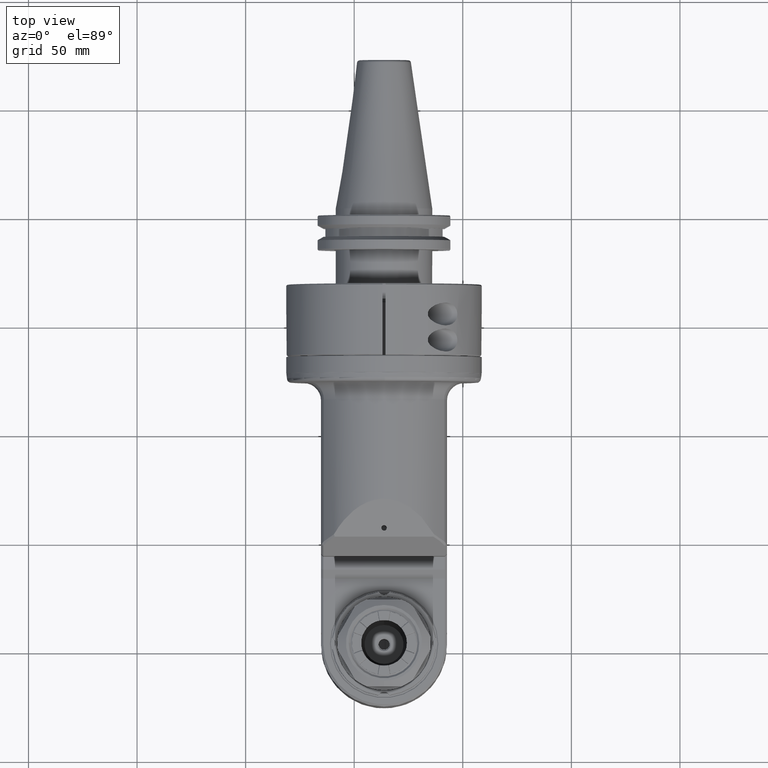
[diagram: clean part render]
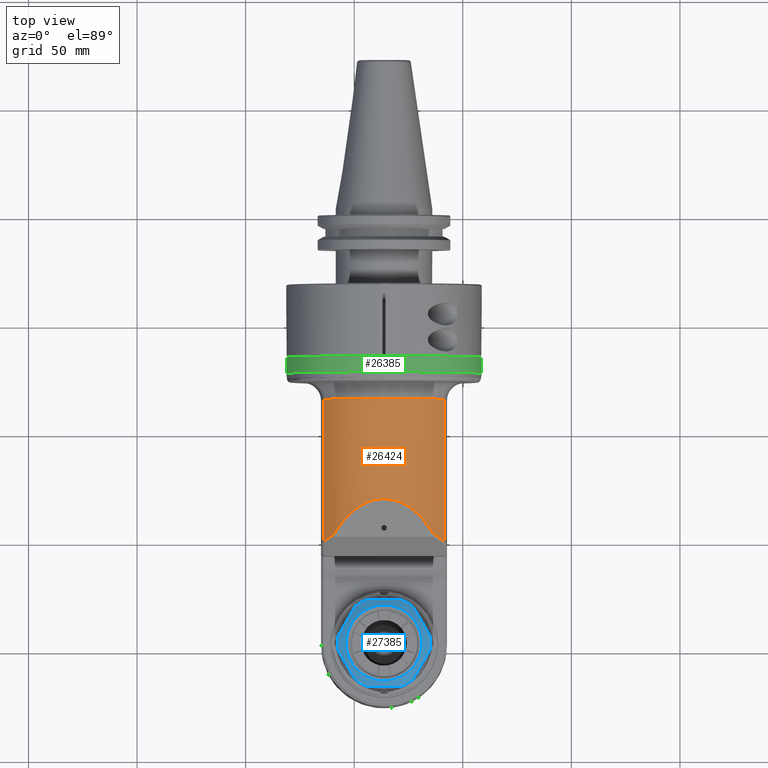
[diagram: same view with three faces highlighted in distinct colors, each labeled with its STEP entity id]
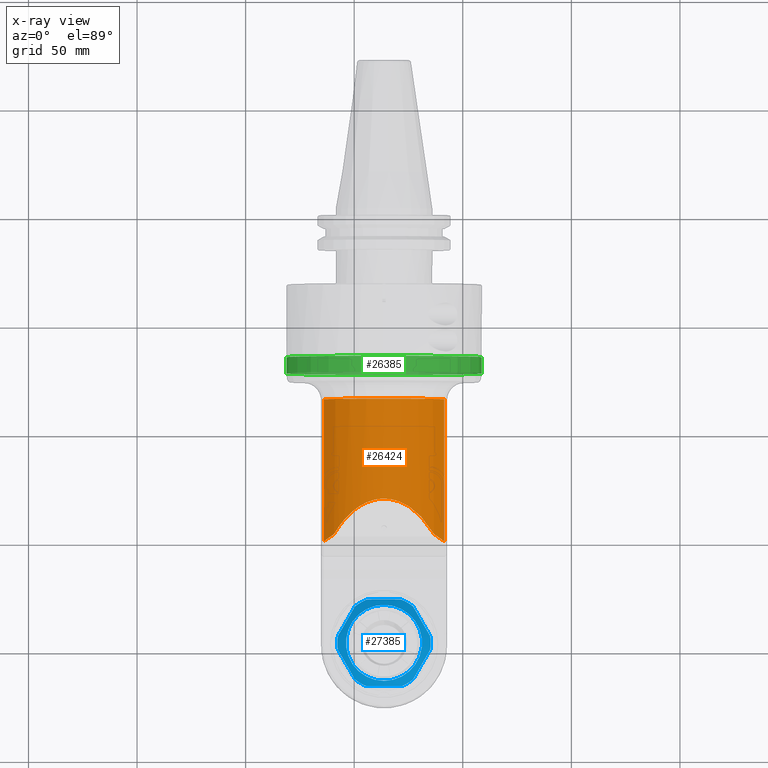
[diagram: x-ray of the same camera — body ghosted, the three highlighted faces saturated]
A machine part, top view with three faces highlighted in distinct colors.
The next image is the same camera in x-ray (body ghosted, the three faces saturated) — at least one of them is partly hidden behind the body in this view.
Their STEP definitions:

[orange] entity #26424 — the highlighted cylindrical surface (partial cylindrical patch) has radius 33 mm, axis along (0, -1, -0).
#162=CYLINDRICAL_SURFACE('',#28132,33.);
#660=ELLIPSE('',#28133,65.9999999999978,33.);
#1216=CIRCLE('',#28131,33.);
#2394=B_SPLINE_CURVE_WITH_KNOTS('',3,(#39907,#39908,#39909,#39910,#39911,
#39912),.UNSPECIFIED.,.F.,.F.,(4,2,4),(-0.809747339902072,-0.411461761048335,
-1.00000000213818E-6),.UNSPECIFIED.);
#2395=B_SPLINE_CURVE_WITH_KNOTS('',3,(#39915,#39916,#39917,#39918,#39919,
#39920),.UNSPECIFIED.,.F.,.F.,(4,2,4),(-0.809640488150578,-0.404860356613981,
-3.28633658952526E-7),.UNSPECIFIED.);
#2660=FACE_OUTER_BOUND('',#4227,.T.);
#4227=EDGE_LOOP('',(#17915,#17916,#17917,#17918,#17919,#17920));
#6087=LINE('',#39056,#8428);
#6102=LINE('',#39114,#8443);
#8428=VECTOR('',#31035,65.43957431409);
#8443=VECTOR('',#31076,65.43955241008);
#10779=VERTEX_POINT('',#39049);
#10781=VERTEX_POINT('',#39055);
#10792=VERTEX_POINT('',#39103);
#10793=VERTEX_POINT('',#39105);
#10861=VERTEX_POINT('',#39906);
#10862=VERTEX_POINT('',#39913);
#13495=EDGE_CURVE('',#10779,#10781,#6087,.T.);
#13517=EDGE_CURVE('',#10793,#10792,#6102,.T.);
#13623=EDGE_CURVE('',#10779,#10792,#1216,.T.);
#13624=EDGE_CURVE('',#10861,#10793,#2394,.T.);
#13625=EDGE_CURVE('',#10862,#10861,#660,.T.);
#13626=EDGE_CURVE('',#10781,#10862,#2395,.T.);
#17915=ORIENTED_EDGE('',*,*,#13623,.T.);
#17916=ORIENTED_EDGE('',*,*,#13517,.F.);
#17917=ORIENTED_EDGE('',*,*,#13624,.F.);
#17918=ORIENTED_EDGE('',*,*,#13625,.F.);
#17919=ORIENTED_EDGE('',*,*,#13626,.F.);
#17920=ORIENTED_EDGE('',*,*,#13495,.F.);
#26424=ADVANCED_FACE('',(#2660),#162,.T.);
#28131=AXIS2_PLACEMENT_3D('',#39904,#31330,#31331);
#28132=AXIS2_PLACEMENT_3D('',#39905,#31332,#31333);
#28133=AXIS2_PLACEMENT_3D('',#39914,#31334,#31335);
#31035=DIRECTION('',(-7.765033788788E-9,-1.,6.350509084506E-9));
#31076=DIRECTION('',(-2.129416896839E-12,1.,-2.017688064937E-12));
#31330=DIRECTION('center_axis',(0.,-1.,0.));
#31331=DIRECTION('ref_axis',(-0.542586398650915,0.,0.839999999999423));
#31332=DIRECTION('center_axis',(0.,-1.,0.));
#31333=DIRECTION('ref_axis',(-1.,0.,0.));
#31334=DIRECTION('center_axis',(-0.866025403784429,-0.500000000000017,0.));
#31335=DIRECTION('ref_axis',(-0.500000000000017,0.866025403784429,0.));
#39049=CARTESIAN_POINT('',(-17.90535115545,-45.,27.72));
#39055=CARTESIAN_POINT('',(-17.9053514606998,-110.439575147595,27.7200000507641));
#39056=CARTESIAN_POINT('',(-17.90535115546,-45.,27.72));
#39103=CARTESIAN_POINT('',(-17.90535115545,-45.,-27.72));
#39105=CARTESIAN_POINT('',(-17.9053511551442,-110.439552409483,-27.7200000001231));
#39114=CARTESIAN_POINT('',(-17.90535115532,-110.4395524101,-27.71999999986));
#39904=CARTESIAN_POINT('Origin',(0.,-45.,0.));
#39905=CARTESIAN_POINT('Origin',(0.,-35.1,0.));
#39906=CARTESIAN_POINT('',(-23.6418107335471,-107.228071202367,-23.0231183056914));
#39907=CARTESIAN_POINT('Ctrl Pts',(-23.6418007191293,-107.228062587408,
-23.0231461524479));
#39908=CARTESIAN_POINT('Ctrl Pts',(-22.7790454808579,-107.711061893345,
-23.9090844719781));
#39909=CARTESIAN_POINT('Ctrl Pts',(-21.8736976387869,-108.218057965183,
-24.739155511472));
#39910=CARTESIAN_POINT('Ctrl Pts',(-19.9586952222403,-109.290080825232,
-26.3103550828824));
#39911=CARTESIAN_POINT('Ctrl Pts',(-18.9478850671435,-109.855808639198,
-27.0465896183354));
#39912=CARTESIAN_POINT('Ctrl Pts',(-17.9053511550563,-110.439552409174,
-27.7200000002547));
#39913=CARTESIAN_POINT('',(-23.6417533507037,-107.228154934159,23.0231191930172));
#39914=CARTESIAN_POINT('Origin',(0.,-148.176914536235,0.));
#39915=CARTESIAN_POINT('Ctrl Pts',(-17.9053513509608,-110.439575155855,
27.719999873713));
#39916=CARTESIAN_POINT('Ctrl Pts',(-18.9314500130932,-109.865068091795,
27.0572056042349));
#39917=CARTESIAN_POINT('Ctrl Pts',(-19.926622560262,-109.308108454237,26.3336710287054));
#39918=CARTESIAN_POINT('Ctrl Pts',(-21.8437709479966,-108.234744047766,
24.7665660179552));
#39919=CARTESIAN_POINT('Ctrl Pts',(-22.7647485313661,-107.719027483457,
23.9237631957933));
#39920=CARTESIAN_POINT('Ctrl Pts',(-23.6417700687157,-107.228084359066,
23.0231776264264));

[blue] entity #27385 — the highlighted conical surface has half-angle 60 deg.
#581=CONICAL_SURFACE('',#29654,19.5,1.0471975511966);
#1059=(
BOUNDED_CURVE()
B_SPLINE_CURVE(2,(#47617,#47618,#47619),.UNSPECIFIED.,.F.,.F.)
B_SPLINE_CURVE_WITH_KNOTS((3,3),(3.65361284659408,4.85638733644815),
 .UNSPECIFIED.)
CURVE()
GEOMETRIC_REPRESENTATION_ITEM()
RATIONAL_B_SPLINE_CURVE((1.50041651245986,1.50041651245986,1.44618459032275))
REPRESENTATION_ITEM('')
);
#1060=(
BOUNDED_CURVE()
B_SPLINE_CURVE(2,(#47623,#47624,#47625),.UNSPECIFIED.,.F.,.F.)
B_SPLINE_CURVE_WITH_KNOTS((3,3),(2.45083835674001,3.65361284659408),
 .UNSPECIFIED.)
CURVE()
GEOMETRIC_REPRESENTATION_ITEM()
RATIONAL_B_SPLINE_CURVE((1.44618459032275,1.50041651245986,1.50041651245986))
REPRESENTATION_ITEM('')
);
#1061=(
BOUNDED_CURVE()
B_SPLINE_CURVE(2,(#47626,#47627,#47628),.UNSPECIFIED.,.F.,.F.)
B_SPLINE_CURVE_WITH_KNOTS((3,3),(2.45083835673399,4.85638733645531),
 .UNSPECIFIED.)
CURVE()
GEOMETRIC_REPRESENTATION_ITEM()
RATIONAL_B_SPLINE_CURVE((1.44618459032297,1.55464843459852,1.44618459032293))
REPRESENTATION_ITEM('')
);
#1062=(
BOUNDED_CURVE()
B_SPLINE_CURVE(2,(#47629,#47630,#47631),.UNSPECIFIED.,.F.,.F.)
B_SPLINE_CURVE_WITH_KNOTS((3,3),(2.45083835673413,4.85638733645296),
 .UNSPECIFIED.)
CURVE()
GEOMETRIC_REPRESENTATION_ITEM()
RATIONAL_B_SPLINE_CURVE((1.44618459032155,1.5546484345966,1.44618459032159))
REPRESENTATION_ITEM('')
);
#1063=(
BOUNDED_CURVE()
B_SPLINE_CURVE(2,(#47632,#47633,#47634),.UNSPECIFIED.,.F.,.F.)
B_SPLINE_CURVE_WITH_KNOTS((3,3),(-4.85638733644814,-2.45083835674014),
 .UNSPECIFIED.)
CURVE()
GEOMETRIC_REPRESENTATION_ITEM()
RATIONAL_B_SPLINE_CURVE((1.44618459032275,1.55464843459695,1.44618459032276))
REPRESENTATION_ITEM('')
);
#1064=(
BOUNDED_CURVE()
B_SPLINE_CURVE(2,(#47635,#47636,#47637),.UNSPECIFIED.,.F.,.F.)
B_SPLINE_CURVE_WITH_KNOTS((3,3),(2.45083835673396,4.856387336456),
 .UNSPECIFIED.)
CURVE()
GEOMETRIC_REPRESENTATION_ITEM()
RATIONAL_B_SPLINE_CURVE((1.44618459032297,1.55464843459855,1.44618459032287))
REPRESENTATION_ITEM('')
);
#1065=(
BOUNDED_CURVE()
B_SPLINE_CURVE(2,(#47638,#47639,#47640),.UNSPECIFIED.,.F.,.F.)
B_SPLINE_CURVE_WITH_KNOTS((3,3),(2.45083835673414,4.85638733645227),
 .UNSPECIFIED.)
CURVE()
GEOMETRIC_REPRESENTATION_ITEM()
RATIONAL_B_SPLINE_CURVE((1.44618459032155,1.55464843459657,1.44618459032165))
REPRESENTATION_ITEM('')
);
#1759=CIRCLE('',#29642,21.5);
#1760=CIRCLE('',#29644,21.5);
#1761=CIRCLE('',#29646,21.5);
#1762=CIRCLE('',#29648,21.5);
#1763=CIRCLE('',#29650,21.5);
#1764=CIRCLE('',#29652,21.5);
#1765=CIRCLE('',#29655,17.5);
#3621=FACE_OUTER_BOUND('',#5301,.T.);
#5301=EDGE_LOOP('',(#22828,#22829,#22830,#22831,#22832,#22833,#22834,#22835,
#22836,#22837,#22838,#22839,#22840,#22841,#22842,#22843));
#7475=LINE('',#47621,#9816);
#9816=VECTOR('',#35713,19.5);
#12354=VERTEX_POINT('',#47568);
#12355=VERTEX_POINT('',#47570);
#12358=VERTEX_POINT('',#47576);
#12359=VERTEX_POINT('',#47578);
#12362=VERTEX_POINT('',#47584);
#12363=VERTEX_POINT('',#47586);
#12366=VERTEX_POINT('',#47592);
#12367=VERTEX_POINT('',#47594);
#12370=VERTEX_POINT('',#47600);
#12371=VERTEX_POINT('',#47602);
#12374=VERTEX_POINT('',#47608);
#12375=VERTEX_POINT('',#47610);
#12377=VERTEX_POINT('',#47616);
#12378=VERTEX_POINT('',#47620);
#15974=EDGE_CURVE('',#12354,#12355,#1759,.T.);
#15978=EDGE_CURVE('',#12358,#12359,#1760,.T.);
#15982=EDGE_CURVE('',#12362,#12363,#1761,.T.);
#15986=EDGE_CURVE('',#12366,#12367,#1762,.T.);
#15990=EDGE_CURVE('',#12370,#12371,#1763,.T.);
#15994=EDGE_CURVE('',#12374,#12375,#1764,.T.);
#15997=EDGE_CURVE('',#12354,#12377,#1059,.F.);
#15998=EDGE_CURVE('',#12377,#12378,#7475,.T.);
#15999=EDGE_CURVE('',#12378,#12378,#1765,.T.);
#16000=EDGE_CURVE('',#12377,#12375,#1060,.F.);
#16001=EDGE_CURVE('',#12371,#12374,#1061,.T.);
#16002=EDGE_CURVE('',#12367,#12370,#1062,.T.);
#16003=EDGE_CURVE('',#12366,#12363,#1063,.T.);
#16004=EDGE_CURVE('',#12359,#12362,#1064,.T.);
#16005=EDGE_CURVE('',#12355,#12358,#1065,.T.);
#22828=ORIENTED_EDGE('',*,*,#15997,.T.);
#22829=ORIENTED_EDGE('',*,*,#15998,.T.);
#22830=ORIENTED_EDGE('',*,*,#15999,.T.);
#22831=ORIENTED_EDGE('',*,*,#15998,.F.);
#22832=ORIENTED_EDGE('',*,*,#16000,.T.);
#22833=ORIENTED_EDGE('',*,*,#15994,.F.);
#22834=ORIENTED_EDGE('',*,*,#16001,.F.);
#22835=ORIENTED_EDGE('',*,*,#15990,.F.);
#22836=ORIENTED_EDGE('',*,*,#16002,.F.);
#22837=ORIENTED_EDGE('',*,*,#15986,.F.);
#22838=ORIENTED_EDGE('',*,*,#16003,.T.);
#22839=ORIENTED_EDGE('',*,*,#15982,.F.);
#22840=ORIENTED_EDGE('',*,*,#16004,.F.);
#22841=ORIENTED_EDGE('',*,*,#15978,.F.);
#22842=ORIENTED_EDGE('',*,*,#16005,.F.);
#22843=ORIENTED_EDGE('',*,*,#15974,.F.);
#27385=ADVANCED_FACE('',(#3621),#581,.T.);
#29642=AXIS2_PLACEMENT_3D('',#47571,#35676,#35677);
#29644=AXIS2_PLACEMENT_3D('',#47579,#35682,#35683);
#29646=AXIS2_PLACEMENT_3D('',#47587,#35688,#35689);
#29648=AXIS2_PLACEMENT_3D('',#47595,#35694,#35695);
#29650=AXIS2_PLACEMENT_3D('',#47603,#35700,#35701);
#29652=AXIS2_PLACEMENT_3D('',#47611,#35706,#35707);
#29654=AXIS2_PLACEMENT_3D('',#47615,#35711,#35712);
#29655=AXIS2_PLACEMENT_3D('',#47622,#35714,#35715);
#35676=DIRECTION('center_axis',(1.,0.,0.));
#35677=DIRECTION('ref_axis',(0.,-0.930232558139522,-0.366970554373509));
#35682=DIRECTION('center_axis',(1.,0.,0.));
#35683=DIRECTION('ref_axis',(0.,-0.147310456539704,-0.989090303963225));
#35688=DIRECTION('center_axis',(1.,0.,0.));
#35689=DIRECTION('ref_axis',(0.,0.782922101598911,-0.622119749588409));
#35694=DIRECTION('center_axis',(1.,0.,0.));
#35695=DIRECTION('ref_axis',(0.,0.930232558139522,0.366970554373509));
#35700=DIRECTION('center_axis',(1.,0.,0.));
#35701=DIRECTION('ref_axis',(0.,0.147310456539606,0.989090303963239));
#35706=DIRECTION('center_axis',(1.,0.,0.));
#35707=DIRECTION('ref_axis',(0.,-0.782922101598911,0.622119749588409));
#35711=DIRECTION('center_axis',(1.,0.,0.));
#35712=DIRECTION('ref_axis',(0.,1.,0.));
#35713=DIRECTION('',(-0.5,0.866025403784439,1.06057523872491E-16));
#35714=DIRECTION('center_axis',(1.,0.,0.));
#35715=DIRECTION('ref_axis',(0.,-1.,0.));
#47568=CARTESIAN_POINT('',(-3.690598923241,-177.,-7.88986691903));
#47570=CARTESIAN_POINT('',(-3.690598923241,-173.8328251844,-13.37557461615));
#47571=CARTESIAN_POINT('Origin',(-3.690598923241,-157.,0.));
#47576=CARTESIAN_POINT('',(-3.690598923241,-160.1671748156,-21.26544153521));
#47578=CARTESIAN_POINT('',(-3.69059892324,-153.8328251844,-21.26544153521));
#47579=CARTESIAN_POINT('Origin',(-3.690598923241,-157.,0.));
#47584=CARTESIAN_POINT('',(-3.690598923241,-140.1671748156,-13.37557461615));
#47586=CARTESIAN_POINT('',(-3.690598923241,-137.,-7.889866919029));
#47587=CARTESIAN_POINT('Origin',(-3.690598923241,-157.,0.));
#47592=CARTESIAN_POINT('',(-3.690598923241,-137.,7.88986691903));
#47594=CARTESIAN_POINT('',(-3.690598923241,-140.1671748156,13.37557461615));
#47595=CARTESIAN_POINT('Origin',(-3.690598923241,-157.,0.));
#47600=CARTESIAN_POINT('',(-3.690598923241,-153.8328251844,21.26544153522));
#47602=CARTESIAN_POINT('',(-3.690598923241,-160.1671748156,21.26544153521));
#47603=CARTESIAN_POINT('Origin',(-3.690598923241,-157.,0.));
#47608=CARTESIAN_POINT('',(-3.690598923241,-173.8328251844,13.37557461616));
#47610=CARTESIAN_POINT('',(-3.690598923241,-177.,7.88986691903));
#47611=CARTESIAN_POINT('Origin',(-3.690598923241,-157.,0.));
#47615=CARTESIAN_POINT('Origin',(-4.84529946162,-157.,0.));
#47616=CARTESIAN_POINT('',(-4.55662432702521,-177.,-4.18441967662656E-15));
#47617=CARTESIAN_POINT('Ctrl Pts',(-4.55662432702521,-177.,-5.91954575495842E-15));
#47618=CARTESIAN_POINT('Ctrl Pts',(-4.55662432702521,-177.,-3.80234550314696));
#47619=CARTESIAN_POINT('Ctrl Pts',(-3.69059892324072,-177.,-7.88986691902994));
#47620=CARTESIAN_POINT('',(-6.,-174.5,0.));
#47621=CARTESIAN_POINT('',(-4.84529946162,-176.5,-2.38806125833734E-15));
#47622=CARTESIAN_POINT('Origin',(-6.,-157.,0.));
#47623=CARTESIAN_POINT('Ctrl Pts',(-3.69059892324072,-177.,7.88986691902994));
#47624=CARTESIAN_POINT('Ctrl Pts',(-4.55662432702521,-177.,3.80234550314695));
#47625=CARTESIAN_POINT('Ctrl Pts',(-4.55662432702521,-177.,-5.91954575495842E-15));
#47626=CARTESIAN_POINT('Ctrl Pts',(-3.69059892324437,-160.167174815596,
21.2654415352042));
#47627=CARTESIAN_POINT('Ctrl Pts',(-5.36222935382292,-166.99999999999,17.3205080756683));
#47628=CARTESIAN_POINT('Ctrl Pts',(-3.69059892324376,-173.832825184385,
13.3755746161322));
#47629=CARTESIAN_POINT('Ctrl Pts',(-3.69059892322099,-140.167174815594,
13.3755746161688));
#47630=CARTESIAN_POINT('Ctrl Pts',(-5.36222935379716,-146.999999999989,
17.320508075705));
#47631=CARTESIAN_POINT('Ctrl Pts',(-3.6905989232216,-153.832825184383,21.2654415352409));
#47632=CARTESIAN_POINT('Ctrl Pts',(-3.69059892324071,-137.,7.88986691902994));
#47633=CARTESIAN_POINT('Ctrl Pts',(-5.36222935380137,-137.,4.12114786740858E-13));
#47634=CARTESIAN_POINT('Ctrl Pts',(-3.69059892324091,-137.,-7.88986691902899));
#47635=CARTESIAN_POINT('Ctrl Pts',(-3.69059892324432,-153.832825184404,
-21.2654415352043));
#47636=CARTESIAN_POINT('Ctrl Pts',(-5.36222935382338,-147.000000000008,
-17.3205080756673));
#47637=CARTESIAN_POINT('Ctrl Pts',(-3.69059892324273,-140.167174815611,
-13.3755746161298));
#47638=CARTESIAN_POINT('Ctrl Pts',(-3.69059892322099,-173.832825184406,
-13.3755746161688));
#47639=CARTESIAN_POINT('Ctrl Pts',(-5.3622293537967,-167.000000000013,-17.3205080757039));
#47640=CARTESIAN_POINT('Ctrl Pts',(-3.6905989232226,-160.167174815621,-21.2654415352385));

[green] entity #26385 — the highlighted cylindrical surface (bore or boss wall) has radius 45 mm, axis along (-0, 1, 0).
#149=CYLINDRICAL_SURFACE('',#28055,45.);
#1175=CIRCLE('',#28053,45.);
#1176=CIRCLE('',#28054,45.);
#1177=CIRCLE('',#28056,45.);
#1178=CIRCLE('',#28057,45.);
#2220=FACE_BOUND('',#4178,.T.);
#2386=B_SPLINE_CURVE_WITH_KNOTS('',3,(#39265,#39266,#39267,#39268,#39269,
#39270,#39271,#39272,#39273,#39274,#39275,#39276,#39277,#39278,#39279,#39280,
#39281,#39282,#39283,#39284,#39285,#39286,#39287,#39288,#39289,#39290,#39291,
#39292,#39293,#39294,#39295,#39296,#39297,#39298,#39299,#39300,#39301,#39302,
#39303,#39304),.UNSPECIFIED.,.F.,.F.,(4,2,2,2,2,2,2,2,2,2,2,2,2,2,2,2,2,
2,2,4),(-0.139335059316782,-0.1298307716669,-0.119995281088209,-0.104158071553232,
-0.0893532137618376,-0.0746922975604052,-0.0601221431783068,-0.0446292620229197,
-0.0241103490961785,-0.0120034651957745,-0.00605513311280228,-0.0031008508969818,
-0.00162776726565247,-0.000896803001999314,-0.000520741519850107,-0.000329142113557362,
-0.000287239324031359,-0.000217133605304998,-4.87510312328305E-5,-4.58545618950808E-5),
 .UNSPECIFIED.);
#2387=B_SPLINE_CURVE_WITH_KNOTS('',3,(#39305,#39306,#39307,#39308,#39309,
#39310,#39311,#39312,#39313,#39314,#39315,#39316,#39317,#39318,#39319,#39320,
#39321,#39322,#39323,#39324,#39325,#39326,#39327,#39328,#39329,#39330,#39331,
#39332,#39333,#39334,#39335,#39336,#39337,#39338,#39339,#39340,#39341,#39342,
#39343,#39344,#39345,#39346,#39347,#39348,#39349,#39350,#39351,#39352,#39353,
#39354,#39355,#39356,#39357,#39358,#39359,#39360,#39361,#39362),
 .UNSPECIFIED.,.F.,.F.,(4,2,2,2,2,2,2,2,2,2,2,2,2,2,2,2,2,2,2,2,2,2,2,2,
2,2,2,2,4),(0.,0.000157311815943142,0.000195409678889624,0.000223511709052707,
0.000248801776165302,0.00027610956082683,0.000314447724541364,0.000411718681242317,
0.0005890630408644,0.000762292063315217,0.000857480382437477,0.000949910325673383,
0.00122188712476336,0.0012930836752263,0.0014557123837146,0.00190700127030027,
0.00222704496507666,0.00266085407679523,0.00429040374584319,0.00731753979816417,
0.0136317583813191,0.0259300957632902,0.0357245790257796,0.0448894076459983,
0.0541193238110043,0.0634361109827979,0.0756853506241125,0.0872220107518334,
0.0984107955283596),.UNSPECIFIED.);
#2621=FACE_OUTER_BOUND('',#4177,.T.);
#4177=EDGE_LOOP('',(#17749,#17750,#17751,#17752,#17753,#17754));
#4178=EDGE_LOOP('',(#17755,#17756));
#6107=LINE('',#39262,#8448);
#8448=VECTOR('',#31151,45.);
#10805=VERTEX_POINT('',#39252);
#10806=VERTEX_POINT('',#39253);
#10807=VERTEX_POINT('',#39258);
#10808=VERTEX_POINT('',#39259);
#10809=VERTEX_POINT('',#39263);
#10810=VERTEX_POINT('',#39264);
#13540=EDGE_CURVE('',#10805,#10806,#1175,.T.);
#13541=EDGE_CURVE('',#10806,#10805,#1176,.T.);
#13543=EDGE_CURVE('',#10807,#10808,#1177,.T.);
#13544=EDGE_CURVE('',#10808,#10807,#1178,.T.);
#13545=EDGE_CURVE('',#10807,#10805,#6107,.T.);
#13546=EDGE_CURVE('',#10809,#10810,#2386,.T.);
#13547=EDGE_CURVE('',#10809,#10810,#2387,.T.);
#17749=ORIENTED_EDGE('',*,*,#13543,.T.);
#17750=ORIENTED_EDGE('',*,*,#13544,.T.);
#17751=ORIENTED_EDGE('',*,*,#13545,.T.);
#17752=ORIENTED_EDGE('',*,*,#13540,.T.);
#17753=ORIENTED_EDGE('',*,*,#13541,.T.);
#17754=ORIENTED_EDGE('',*,*,#13545,.F.);
#17755=ORIENTED_EDGE('',*,*,#13546,.F.);
#17756=ORIENTED_EDGE('',*,*,#13547,.T.);
#26385=ADVANCED_FACE('',(#2621,#2220),#149,.T.);
#28053=AXIS2_PLACEMENT_3D('',#39254,#31140,#31141);
#28054=AXIS2_PLACEMENT_3D('',#39255,#31142,#31143);
#28055=AXIS2_PLACEMENT_3D('',#39257,#31145,#31146);
#28056=AXIS2_PLACEMENT_3D('',#39260,#31147,#31148);
#28057=AXIS2_PLACEMENT_3D('',#39261,#31149,#31150);
#31140=DIRECTION('center_axis',(0.,1.,0.));
#31141=DIRECTION('ref_axis',(-1.205488637833E-11,0.,-1.));
#31142=DIRECTION('center_axis',(0.,1.,0.));
#31143=DIRECTION('ref_axis',(-1.205488637833E-11,0.,-1.));
#31145=DIRECTION('center_axis',(0.,1.,0.));
#31146=DIRECTION('ref_axis',(0.,0.,1.));
#31147=DIRECTION('center_axis',(0.,-1.,0.));
#31148=DIRECTION('ref_axis',(-1.203483328334E-11,0.,-1.));
#31149=DIRECTION('center_axis',(0.,-1.,0.));
#31150=DIRECTION('ref_axis',(-1.203483328334E-11,0.,-1.));
#31151=DIRECTION('',(0.,-1.,0.));
#39252=CARTESIAN_POINT('',(-2.712004356787E-10,-32.79999652174,-45.));
#39253=CARTESIAN_POINT('',(2.34660942878763E-13,-32.7999965217402,45.0000000000015));
#39254=CARTESIAN_POINT('Origin',(2.291500322826E-13,-32.79999652174,1.298686443434E-12));
#39255=CARTESIAN_POINT('Origin',(2.291500322826E-13,-32.79999652174,1.298686443434E-12));
#39257=CARTESIAN_POINT('Origin',(0.,-33.39,0.));
#39258=CARTESIAN_POINT('',(-5.422407369926E-10,-25.40000436252,-45.));
#39259=CARTESIAN_POINT('',(-6.78750152728863E-13,-25.4000043625173,45.000000000005));
#39260=CARTESIAN_POINT('Origin',(-6.732392421327E-13,-25.40000436252,2.360608645673E-12));
#39261=CARTESIAN_POINT('Origin',(-6.732392421327E-13,-25.40000436252,2.360608645673E-12));
#39262=CARTESIAN_POINT('',(-5.51091059616309E-15,-33.39,-45.));
#39263=CARTESIAN_POINT('',(44.9615978172975,-28.5993516479244,-1.85858250590115));
#39264=CARTESIAN_POINT('',(44.9614223042218,-28.5999466601629,1.85845625736424));
#39265=CARTESIAN_POINT('Ctrl Pts',(44.9615921579382,-28.5992229546677,-1.85882506525841));
#39266=CARTESIAN_POINT('Ctrl Pts',(44.961600091964,-28.4650154517804,-1.85863315562699));
#39267=CARTESIAN_POINT('Ctrl Pts',(44.9622413885439,-28.3303047454184,-1.84328793667509));
#39268=CARTESIAN_POINT('Ctrl Pts',(44.9646483849702,-28.0635669851742,-1.78362489767029));
#39269=CARTESIAN_POINT('Ctrl Pts',(44.9664613260588,-27.9308255449928,-1.73809890501446));
#39270=CARTESIAN_POINT('Ctrl Pts',(44.9723266901356,-27.6020975554511,-1.58090133221151));
#39271=CARTESIAN_POINT('Ctrl Pts',(44.9773215102512,-27.4038726066448,-1.44161514088322));
#39272=CARTESIAN_POINT('Ctrl Pts',(44.9877367297369,-27.0654496452885,-1.06606428159947));
#39273=CARTESIAN_POINT('Ctrl Pts',(44.9924953385874,-26.9386978831335,-0.853719427745291));
#39274=CARTESIAN_POINT('Ctrl Pts',(44.9988619578882,-26.7758516784983,-0.393524330652271));
#39275=CARTESIAN_POINT('Ctrl Pts',(45.0004001511099,-26.7403309267114,-0.150860289602674));
#39276=CARTESIAN_POINT('Ctrl Pts',(44.9994165687763,-26.7640910406993,0.332499050217652));
#39277=CARTESIAN_POINT('Ctrl Pts',(44.9969359699444,-26.8224790269258,0.569022847935867));
#39278=CARTESIAN_POINT('Ctrl Pts',(44.9890156848875,-27.0332924398335,1.0211650095047));
#39279=CARTESIAN_POINT('Ctrl Pts',(44.9839150995234,-27.181074257235,1.21227561738551));
#39280=CARTESIAN_POINT('Ctrl Pts',(44.97343118353,-27.5520646090113,1.55867894897743));
#39281=CARTESIAN_POINT('Ctrl Pts',(44.9688988319009,-27.7753591420869,1.67409327923665));
#39282=CARTESIAN_POINT('Ctrl Pts',(44.9647955206335,-28.0568677838626,1.78008796940868));
#39283=CARTESIAN_POINT('Ctrl Pts',(44.9636002230444,-28.1646555095967,1.80970769122667));
#39284=CARTESIAN_POINT('Ctrl Pts',(44.9624076570985,-28.3284968527238,1.83901905455674));
#39285=CARTESIAN_POINT('Ctrl Pts',(44.9621103837363,-28.382884459014,1.84625376187123));
#39286=CARTESIAN_POINT('Ctrl Pts',(44.9618144099427,-28.4646365659323,1.85344292250849));
#39287=CARTESIAN_POINT('Ctrl Pts',(44.9617407237325,-28.4918197479071,1.85522842196014));
#39288=CARTESIAN_POINT('Ctrl Pts',(44.9616674216968,-28.5325877263414,1.85700377227724));
#39289=CARTESIAN_POINT('Ctrl Pts',(44.9616491817991,-28.5461615487167,1.85744527194325));
#39290=CARTESIAN_POINT('Ctrl Pts',(44.9616311263243,-28.5664652019139,1.85788225713666));
#39291=CARTESIAN_POINT('Ctrl Pts',(44.9616266062799,-28.5732567271349,1.85799163684425));
#39292=CARTESIAN_POINT('Ctrl Pts',(44.9616221328342,-28.5835525232516,1.85809988579332));
#39293=CARTESIAN_POINT('Ctrl Pts',(44.9616210447091,-28.5870010324469,1.85812621537473));
#39294=CARTESIAN_POINT('Ctrl Pts',(44.961619988447,-28.5919419327545,1.8581517738228));
#39295=CARTESIAN_POINT('Ctrl Pts',(44.9616197527942,-28.593609624318,1.85815747587615));
#39296=CARTESIAN_POINT('Ctrl Pts',(44.9616195943764,-28.5956420427936,1.85816130908788));
#39297=CARTESIAN_POINT('Ctrl Pts',(44.9616195563062,-28.5961390441815,1.85816223026502));
#39298=CARTESIAN_POINT('Ctrl Pts',(44.9616194413893,-28.5973396123621,1.85816501088898));
#39299=CARTESIAN_POINT('Ctrl Pts',(44.9616194174272,-28.5973552817285,1.85816559069317));
#39300=CARTESIAN_POINT('Ctrl Pts',(44.9616194001668,-28.5984336481853,1.85816600833759));
#39301=CARTESIAN_POINT('Ctrl Pts',(44.9616197210834,-28.5992220169206,1.85815824398633));
#39302=CARTESIAN_POINT('Ctrl Pts',(44.9616220241,-28.5997882344601,1.8581025165378));
#39303=CARTESIAN_POINT('Ctrl Pts',(44.9616220641086,-28.5997978609021,1.85810154842539));
#39304=CARTESIAN_POINT('Ctrl Pts',(44.9616221052143,-28.5998075278426,1.85810055376565));
#39305=CARTESIAN_POINT('Ctrl Pts',(44.9616106553738,-28.5994901032263,-1.85837759203531));
#39306=CARTESIAN_POINT('Ctrl Pts',(44.9616209391639,-28.599951575321,-1.85812878588834));
#39307=CARTESIAN_POINT('Ctrl Pts',(44.9616263942317,-28.6004677386437,-1.85799676803117));
#39308=CARTESIAN_POINT('Ctrl Pts',(44.9616298282917,-28.6011121463112,-1.85791366428464));
#39309=CARTESIAN_POINT('Ctrl Pts',(44.961630342948,-28.6012384948531,-1.85790120947848));
#39310=CARTESIAN_POINT('Ctrl Pts',(44.9616310126548,-28.6014579992152,-1.85788500234083));
#39311=CARTESIAN_POINT('Ctrl Pts',(44.961631227356,-28.6015514060917,-1.85787980646156));
#39312=CARTESIAN_POINT('Ctrl Pts',(44.961631520651,-28.6017287769091,-1.85787270855986));
#39313=CARTESIAN_POINT('Ctrl Pts',(44.9616316109863,-28.60181291602,-1.85787052238874));
#39314=CARTESIAN_POINT('Ctrl Pts',(44.9616317107014,-28.6019877668731,-1.8578681092188));
#39315=CARTESIAN_POINT('Ctrl Pts',(44.9616317131554,-28.6020786612007,-1.85786804982939));
#39316=CARTESIAN_POINT('Ctrl Pts',(44.9616316177935,-28.6022968881471,-1.8578703576486));
#39317=CARTESIAN_POINT('Ctrl Pts',(44.9616314788537,-28.6024245877551,-1.85787372008565));
#39318=CARTESIAN_POINT('Ctrl Pts',(44.9616307570012,-28.6028750270576,-1.85789118929277));
#39319=CARTESIAN_POINT('Ctrl Pts',(44.9616298079658,-28.603202393999,-1.85791415630103));
#39320=CARTESIAN_POINT('Ctrl Pts',(44.9616266384723,-28.6041094875474,-1.85799085710279));
#39321=CARTESIAN_POINT('Ctrl Pts',(44.961623910117,-28.6047051962391,-1.85805687968451));
#39322=CARTESIAN_POINT('Ctrl Pts',(44.961619480762,-28.6058699722088,-1.85816405895008));
#39323=CARTESIAN_POINT('Ctrl Pts',(44.9616183033527,-28.6062957822437,-1.85819254762508));
#39324=CARTESIAN_POINT('Ctrl Pts',(44.9616169805858,-28.6071022950509,-1.85822455349946));
#39325=CARTESIAN_POINT('Ctrl Pts',(44.9616166865235,-28.6073878041435,-1.85823166858704));
#39326=CARTESIAN_POINT('Ctrl Pts',(44.9616163967203,-28.6079520308495,-1.85823868062874));
#39327=CARTESIAN_POINT('Ctrl Pts',(44.9616163932216,-28.6082293899761,-1.85823876528064));
#39328=CARTESIAN_POINT('Ctrl Pts',(44.9616168124478,-28.6093255244217,-1.85822862174508));
#39329=CARTESIAN_POINT('Ctrl Pts',(44.9616179801568,-28.6100748432427,-1.85820036799338));
#39330=CARTESIAN_POINT('Ctrl Pts',(44.961619761039,-28.611175552094,-1.85815727639637));
#39331=CARTESIAN_POINT('Ctrl Pts',(44.9616226447054,-28.613102555806,-1.8580874994741));
#39332=CARTESIAN_POINT('Ctrl Pts',(44.9616259401733,-28.6172771246367,-1.8580077553707));
#39333=CARTESIAN_POINT('Ctrl Pts',(44.9616253468183,-28.6201906692501,-1.85802211298994));
#39334=CARTESIAN_POINT('Ctrl Pts',(44.961625920791,-28.631339491729,-1.85800822359922));
#39335=CARTESIAN_POINT('Ctrl Pts',(44.9616360024505,-28.6405147299263,-1.85776424825306));
#39336=CARTESIAN_POINT('Ctrl Pts',(44.9616457125434,-28.6489529072494,-1.85752922702446));
#39337=CARTESIAN_POINT('Ctrl Pts',(44.9616535243186,-28.6555125261571,-1.85734013730838));
#39338=CARTESIAN_POINT('Ctrl Pts',(44.9616693579272,-28.6675114201655,-1.85695681079912));
#39339=CARTESIAN_POINT('Ctrl Pts',(44.9616789795672,-28.673897167609,-1.85672384324767));
#39340=CARTESIAN_POINT('Ctrl Pts',(44.9617384107592,-28.7070349126032,-1.85528444636233));
#39341=CARTESIAN_POINT('Ctrl Pts',(44.9618107376017,-28.7342644139337,-1.85353206151868));
#39342=CARTESIAN_POINT('Ctrl Pts',(44.9620964378402,-28.8134395045013,-1.84659261847539));
#39343=CARTESIAN_POINT('Ctrl Pts',(44.9623718637913,-28.8649437980257,-1.83988991555116));
#39344=CARTESIAN_POINT('Ctrl Pts',(44.9634844924874,-29.0224381996802,-1.81256832149098));
#39345=CARTESIAN_POINT('Ctrl Pts',(44.9646087702395,-29.1270185366463,-1.78474797538762));
#39346=CARTESIAN_POINT('Ctrl Pts',(44.9688420905929,-29.4263442456391,-1.67583640365316));
#39347=CARTESIAN_POINT('Ctrl Pts',(44.9734084278722,-29.6447455822148,-1.55758809496377));
#39348=CARTESIAN_POINT('Ctrl Pts',(44.9834583955456,-30.0045159516787,-1.22871802784613));
#39349=CARTESIAN_POINT('Ctrl Pts',(44.9885879921554,-30.1547111801458,-1.03979570235965));
#39350=CARTESIAN_POINT('Ctrl Pts',(44.9966712220306,-30.3710019580486,-0.58911444063573));
#39351=CARTESIAN_POINT('Ctrl Pts',(44.999256709853,-30.4320352048434,-0.353342505350382));
#39352=CARTESIAN_POINT('Ctrl Pts',(45.0004657974082,-30.4612660786055,0.12984409582411));
#39353=CARTESIAN_POINT('Ctrl Pts',(44.9990413233975,-30.4284160903582,0.37299673001045));
#39354=CARTESIAN_POINT('Ctrl Pts',(44.9928528809642,-30.270743652943,0.834886622109945));
#39355=CARTESIAN_POINT('Ctrl Pts',(44.9881578692769,-30.1465513415791,1.04848985683077));
#39356=CARTESIAN_POINT('Ctrl Pts',(44.9765282966861,-29.772405902497,1.4731325547473));
#39357=CARTESIAN_POINT('Ctrl Pts',(44.9715152868485,-29.549157110056,1.60228499254428));
#39358=CARTESIAN_POINT('Ctrl Pts',(44.9666806441157,-29.2841613904947,1.73252053806814));
#39359=CARTESIAN_POINT('Ctrl Pts',(44.9647877177955,-29.1486155700489,1.780133019457));
#39360=CARTESIAN_POINT('Ctrl Pts',(44.962269519777,-28.875763531968,1.8426252538718));
#39361=CARTESIAN_POINT('Ctrl Pts',(44.9615972717076,-28.7375304560195,1.85870137256432));
#39362=CARTESIAN_POINT('Ctrl Pts',(44.9615921129066,-28.599844583071,1.85882615449026));